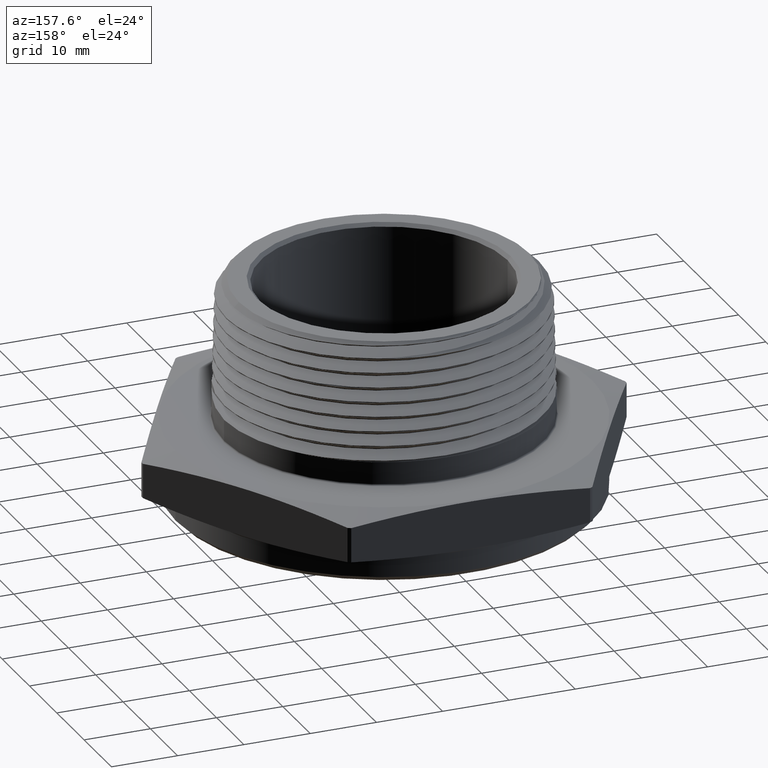
[diagram: clean part render]
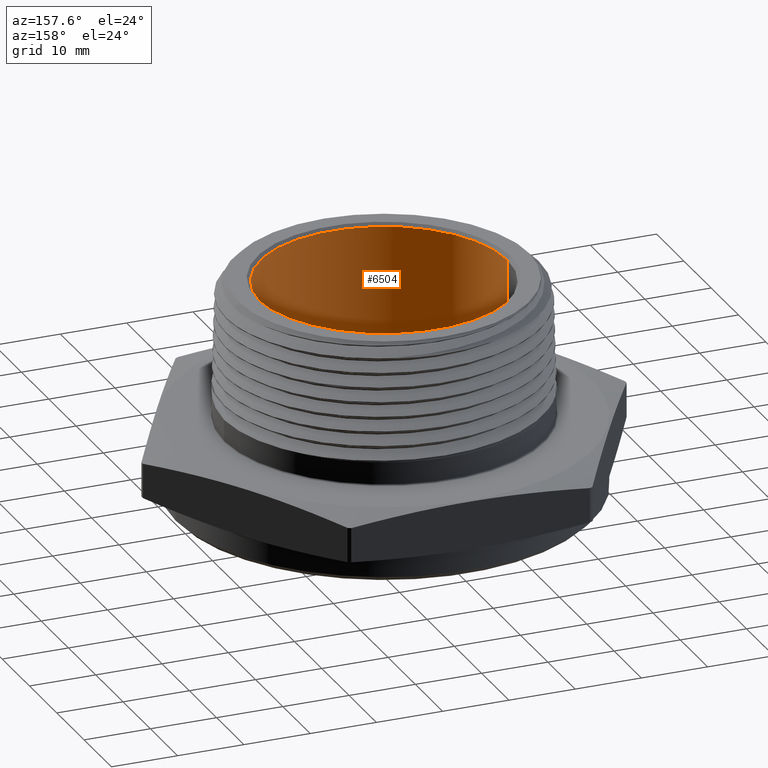
[diagram: same view with one face highlighted and labeled with its STEP entity id]
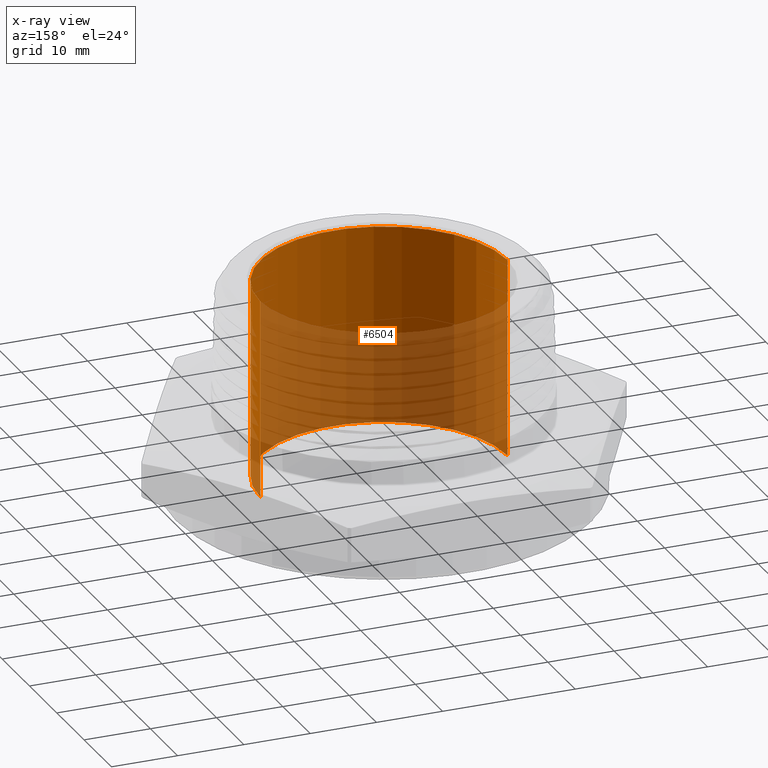
[diagram: x-ray of the same camera — body ghosted, the highlighted face saturated]
A machine part, auxiliary view. The second image highlights one B-rep face of the part: STEP entity #6504.
The next image is the same camera in x-ray: the body ghosted, the highlighted face saturated — about 54% of this face is hidden behind the body in this view.
In plain terms, the highlighted cylindrical surface (partial cylindrical patch) has radius 18.669 mm, axis along (-0, -0, 1).
Its self-contained STEP definition (entity closure, byte-faithful):
#605 = CYLINDRICAL_SURFACE ( 'NONE', #7724, 0.7349999999999999900 ) ;
#678 = LINE ( 'NONE', #6460, #690 ) ;
#686 = CIRCLE ( 'NONE', #7766, 0.7349999999999999900 ) ;
#688 = LINE ( 'NONE', #6461, #692 ) ;
#690 = VECTOR ( 'NONE', #6292, 39.37007874015748100 ) ;
#692 = VECTOR ( 'NONE', #6456, 39.37007874015748100 ) ;
#696 = CIRCLE ( 'NONE', #7770, 0.7349999999999997600 ) ;
#3798 = FACE_OUTER_BOUND ( 'NONE', #5330, .T. ) ;
#3826 = ORIENTED_EDGE ( 'NONE', *, *, #7557, .F. ) ;
#3827 = ORIENTED_EDGE ( 'NONE', *, *, #7564, .T. ) ;
#3828 = ORIENTED_EDGE ( 'NONE', *, *, #7556, .T. ) ;
#3829 = ORIENTED_EDGE ( 'NONE', *, *, #7555, .F. ) ;
#5330 = EDGE_LOOP ( 'NONE', ( #3829, #3828, #3827, #3826 ) ) ;
#6025 = VERTEX_POINT ( 'NONE', #6814 ) ;
#6026 = VERTEX_POINT ( 'NONE', #6812 ) ;
#6028 = VERTEX_POINT ( 'NONE', #6811 ) ;
#6029 = VERTEX_POINT ( 'NONE', #6815 ) ;
#6292 = DIRECTION ( 'NONE',  ( -2.307956700049595600E-032, -0.0000000000000000000, 1.000000000000000000 ) ) ;
#6427 = DIRECTION ( 'NONE',  ( 1.000000000000000000, 0.0000000000000000000, 0.0000000000000000000 ) ) ;
#6428 = DIRECTION ( 'NONE',  ( -2.307956700049595900E-032, -0.0000000000000000000, 1.000000000000000000 ) ) ;
#6429 = CARTESIAN_POINT ( 'NONE',  ( 1.224646799147323500E-018, 0.0000000000000000000, 1.100000000000000100 ) ) ;
#6456 = DIRECTION ( 'NONE',  ( -2.307956700049595600E-032, -0.0000000000000000000, 1.000000000000000000 ) ) ;
#6457 = DIRECTION ( 'NONE',  ( 1.000000000000000000, 0.0000000000000000000, 0.0000000000000000000 ) ) ;
#6458 = DIRECTION ( 'NONE',  ( -2.307956700049595900E-032, -0.0000000000000000000, 1.000000000000000000 ) ) ;
#6459 = CARTESIAN_POINT ( 'NONE',  ( 1.224646799147350700E-018, 0.0000000000000000000, -0.07599999999999995600 ) ) ;
#6460 = CARTESIAN_POINT ( 'NONE',  ( -0.7349999999999999900, 9.001153973733045900E-017, -0.1600000000000000000 ) ) ;
#6461 = CARTESIAN_POINT ( 'NONE',  ( 0.7349999999999999900, 0.0000000000000000000, -0.1600000000000000000 ) ) ;
#6504 = ADVANCED_FACE ( 'NONE', ( #3798 ), #605, .F. ) ;
#6697 = DIRECTION ( 'NONE',  ( -2.307956700049595900E-032, -0.0000000000000000000, 1.000000000000000000 ) ) ;
#6698 = CARTESIAN_POINT ( 'NONE',  ( 1.224646799147352600E-018, 0.0000000000000000000, -0.1600000000000000000 ) ) ;
#6699 = DIRECTION ( 'NONE',  ( 1.000000000000000000, 0.0000000000000000000, 0.0000000000000000000 ) ) ;
#6811 = CARTESIAN_POINT ( 'NONE',  ( -0.7349999999999997600, 9.001153973733043400E-017, 1.100000000000000100 ) ) ;
#6812 = CARTESIAN_POINT ( 'NONE',  ( 0.7349999999999999900, 0.0000000000000000000, -0.07599999999999995600 ) ) ;
#6814 = CARTESIAN_POINT ( 'NONE',  ( -0.7349999999999999900, 9.001153973733045900E-017, -0.07599999999999995600 ) ) ;
#6815 = CARTESIAN_POINT ( 'NONE',  ( 0.7349999999999997600, 0.0000000000000000000, 1.100000000000000100 ) ) ;
#7555 = EDGE_CURVE ( 'NONE', #6025, #6026, #686, .T. ) ;
#7556 = EDGE_CURVE ( 'NONE', #6025, #6028, #678, .T. ) ;
#7557 = EDGE_CURVE ( 'NONE', #6026, #6029, #688, .T. ) ;
#7564 = EDGE_CURVE ( 'NONE', #6028, #6029, #696, .T. ) ;
#7724 = AXIS2_PLACEMENT_3D ( 'NONE', #6698, #6697, #6699 ) ;
#7766 = AXIS2_PLACEMENT_3D ( 'NONE', #6459, #6458, #6457 ) ;
#7770 = AXIS2_PLACEMENT_3D ( 'NONE', #6429, #6428, #6427 ) ;